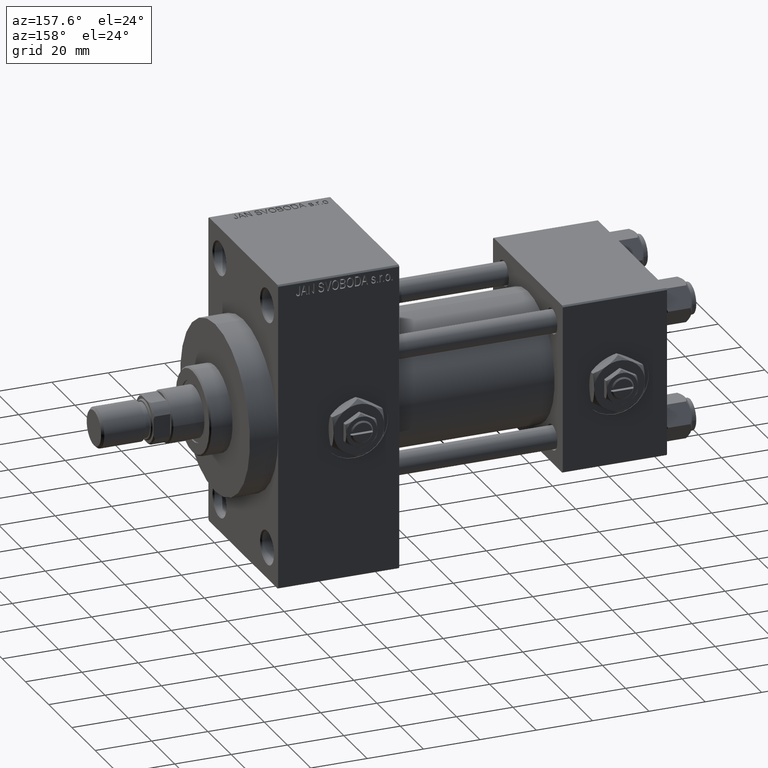
[diagram: clean part render]
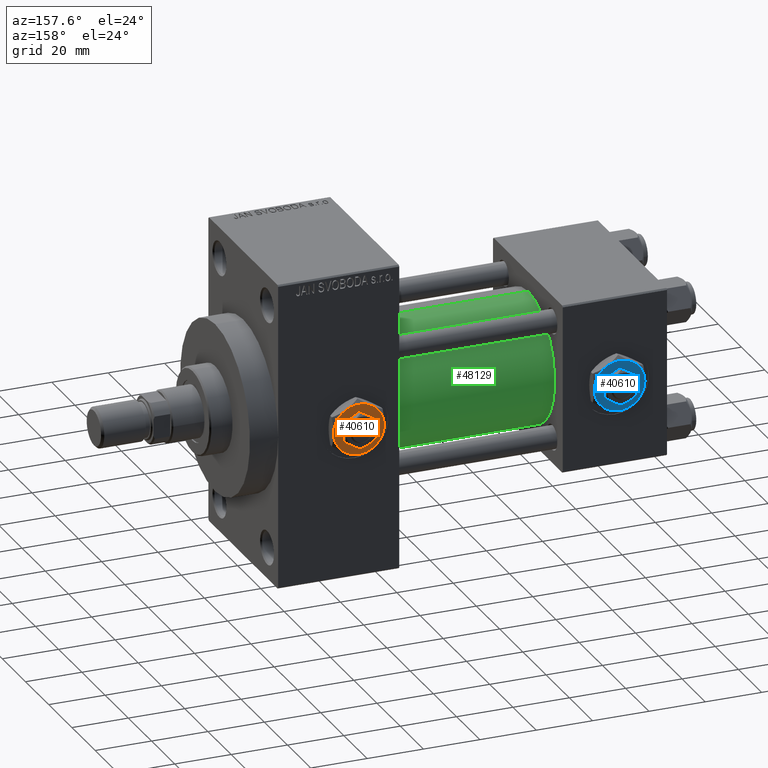
[diagram: same view with three faces highlighted in distinct colors, each labeled with its STEP entity id]
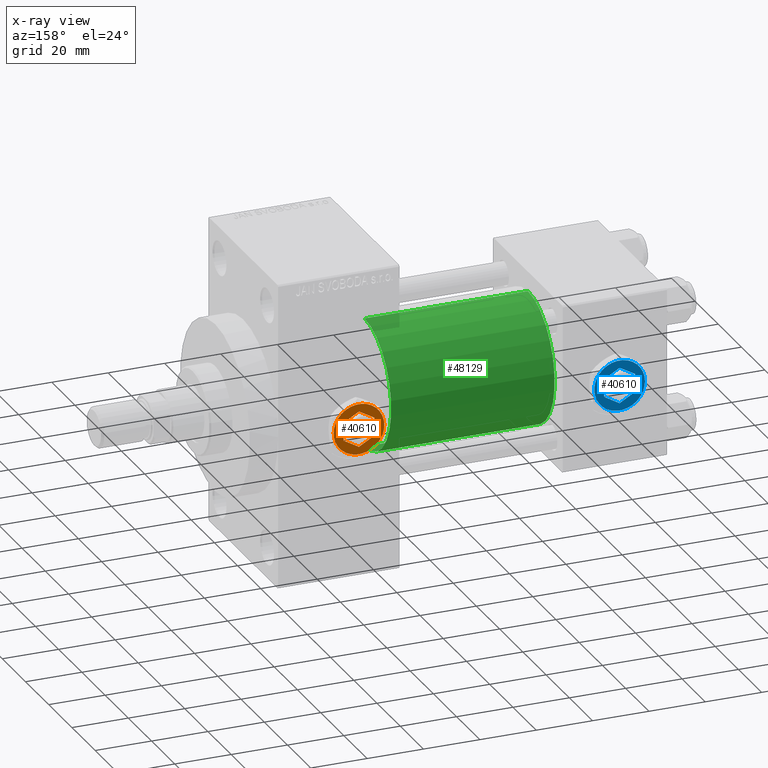
[diagram: x-ray of the same camera — body ghosted, the three highlighted faces saturated]
A machine part, auxiliary view with three faces highlighted in distinct colors.
The next image is the same camera in x-ray (body ghosted, the three faces saturated) — at least one of them is partly hidden behind the body in this view.
Their STEP definitions:

[orange] entity #40610 — the highlighted planar face has unit normal (0, 1, 0).
#30 = EDGE_CURVE ( 'NONE', #42749, #38718, #43653, .T. ) ;
#1771 = VECTOR ( 'NONE', #8315, 1000.000000000000000 ) ;
#2090 = CARTESIAN_POINT ( 'NONE',  ( 0.000000000000000000, 0.000000000000000000, 4.299999999999999822 ) ) ;
#2254 = ORIENTED_EDGE ( 'NONE', *, *, #5865, .T. ) ;
#2389 = AXIS2_PLACEMENT_3D ( 'NONE', #2090, #32541, #9897 ) ;
#2541 = DIRECTION ( 'NONE',  ( 0.000000000000000000, 0.000000000000000000, 1.000000000000000000 ) ) ;
#2704 = CARTESIAN_POINT ( 'NONE',  ( 0.000000000000000000, 0.000000000000000000, 4.299999999999999822 ) ) ;
#2849 = DIRECTION ( 'NONE',  ( 0.8660254037844387076, -0.4999999999999998890, 0.000000000000000000 ) ) ;
#2862 = EDGE_CURVE ( 'NONE', #18109, #26643, #11541, .T. ) ;
#2950 = FACE_OUTER_BOUND ( 'NONE', #32257, .T. ) ;
#3564 = DIRECTION ( 'NONE',  ( 0.000000000000000000, 0.000000000000000000, 1.000000000000000000 ) ) ;
#4000 = CIRCLE ( 'NONE', #2389, 9.000000000000000000 ) ;
#4720 = ORIENTED_EDGE ( 'NONE', *, *, #32499, .T. ) ;
#5288 = ORIENTED_EDGE ( 'NONE', *, *, #48249, .F. ) ;
#5865 = EDGE_CURVE ( 'NONE', #9272, #24291, #27627, .T. ) ;
#5954 = DIRECTION ( 'NONE',  ( 1.000000000000000000, 0.000000000000000000, 0.000000000000000000 ) ) ;
#6896 = ORIENTED_EDGE ( 'NONE', *, *, #14980, .F. ) ;
#6975 = CARTESIAN_POINT ( 'NONE',  ( 4.499999999999997335, -7.794228634059948035, 4.299999999999999822 ) ) ;
#6991 = ORIENTED_EDGE ( 'NONE', *, *, #30, .T. ) ;
#8315 = DIRECTION ( 'NONE',  ( -2.731481088613017227E-16, 1.000000000000000000, 0.000000000000000000 ) ) ;
#8366 = EDGE_CURVE ( 'NONE', #33393, #41302, #15268, .T. ) ;
#9216 = ORIENTED_EDGE ( 'NONE', *, *, #16016, .F. ) ;
#9272 = VERTEX_POINT ( 'NONE', #25879 ) ;
#9516 = CARTESIAN_POINT ( 'NONE',  ( 4.500000000000000000, 7.794228634059947147, 4.299999999999999822 ) ) ;
#9851 = CARTESIAN_POINT ( 'NONE',  ( 0.000000000000000000, 0.000000000000000000, 4.299999999999999822 ) ) ;
#9853 = EDGE_CURVE ( 'NONE', #38718, #9272, #4000, .T. ) ;
#9897 = DIRECTION ( 'NONE',  ( 1.000000000000000000, 0.000000000000000000, 0.000000000000000000 ) ) ;
#10600 = AXIS2_PLACEMENT_3D ( 'NONE', #46679, #24278, #11960 ) ;
#10900 = CIRCLE ( 'NONE', #30189, 9.000000000000000000 ) ;
#11541 = LINE ( 'NONE', #34199, #20286 ) ;
#11960 = DIRECTION ( 'NONE',  ( 1.000000000000000000, 0.000000000000000000, 0.000000000000000000 ) ) ;
#12142 = ORIENTED_EDGE ( 'NONE', *, *, #2862, .F. ) ;
#14505 = DIRECTION ( 'NONE',  ( 1.000000000000000000, 0.000000000000000000, -0.000000000000000000 ) ) ;
#14980 = EDGE_CURVE ( 'NONE', #26643, #39457, #32192, .T. ) ;
#15117 = LINE ( 'NONE', #18898, #39501 ) ;
#15268 = LINE ( 'NONE', #22835, #32046 ) ;
#15842 = CARTESIAN_POINT ( 'NONE',  ( -5.500000000000000000, -3.175426480542942187, 4.299999999999999822 ) ) ;
#16016 = EDGE_CURVE ( 'NONE', #39025, #18109, #33536, .T. ) ;
#16591 = CARTESIAN_POINT ( 'NONE',  ( -1.343581385738006573E-15, -6.350852961085881709, 4.299999999999999822 ) ) ;
#17369 = CARTESIAN_POINT ( 'NONE',  ( 8.999999999999998224, 0.000000000000000000, 4.299999999999999822 ) ) ;
#17656 = ORIENTED_EDGE ( 'NONE', *, *, #8366, .F. ) ;
#18109 = VERTEX_POINT ( 'NONE', #16591 ) ;
#18898 = CARTESIAN_POINT ( 'NONE',  ( 5.499999999999999112, 3.175426480542943075, 4.299999999999999822 ) ) ;
#19095 = EDGE_CURVE ( 'NONE', #41302, #39025, #37733, .T. ) ;
#20286 = VECTOR ( 'NONE', #45275, 1000.000000000000000 ) ;
#20771 = AXIS2_PLACEMENT_3D ( 'NONE', #2704, #45716, #14505 ) ;
#20890 = CARTESIAN_POINT ( 'NONE',  ( 5.500000000000000888, -3.175426480542940855, 4.299999999999999822 ) ) ;
#21228 = AXIS2_PLACEMENT_3D ( 'NONE', #41415, #33854, #5954 ) ;
#21491 = AXIS2_PLACEMENT_3D ( 'NONE', #38044, #3564, #27937 ) ;
#21871 = VECTOR ( 'NONE', #2849, 1000.000000000000000 ) ;
#22815 = PLANE ( 'NONE',  #20771 ) ;
#22835 = CARTESIAN_POINT ( 'NONE',  ( 0.000000000000000000, 6.350852961085883486, 4.299999999999999822 ) ) ;
#24278 = DIRECTION ( 'NONE',  ( 0.000000000000000000, 0.000000000000000000, 1.000000000000000000 ) ) ;
#24291 = VERTEX_POINT ( 'NONE', #47464 ) ;
#24690 = DIRECTION ( 'NONE',  ( 1.000000000000000000, 0.000000000000000000, 0.000000000000000000 ) ) ;
#25879 = CARTESIAN_POINT ( 'NONE',  ( -9.000000000000000000, 0.000000000000000000, 4.299999999999999822 ) ) ;
#26618 = EDGE_CURVE ( 'NONE', #41616, #37232, #10900, .T. ) ;
#26643 = VERTEX_POINT ( 'NONE', #20890 ) ;
#27045 = CIRCLE ( 'NONE', #45512, 9.000000000000000000 ) ;
#27437 = CARTESIAN_POINT ( 'NONE',  ( 5.500000000000000888, -3.175426480542940855, 4.299999999999999822 ) ) ;
#27627 = CIRCLE ( 'NONE', #21228, 9.000000000000000000 ) ;
#27937 = DIRECTION ( 'NONE',  ( 1.000000000000000000, 0.000000000000000000, 0.000000000000000000 ) ) ;
#28229 = CARTESIAN_POINT ( 'NONE',  ( 0.000000000000000000, 6.350852961085883486, 4.299999999999999822 ) ) ;
#28715 = DIRECTION ( 'NONE',  ( 1.000000000000000000, 0.000000000000000000, 0.000000000000000000 ) ) ;
#29016 = EDGE_LOOP ( 'NONE', ( #17656, #5288, #6896, #12142, #9216, #36911 ) ) ;
#30189 = AXIS2_PLACEMENT_3D ( 'NONE', #43550, #32729, #28715 ) ;
#30239 = DIRECTION ( 'NONE',  ( -0.8660254037844387076, 0.4999999999999999445, 0.000000000000000000 ) ) ;
#30523 = CARTESIAN_POINT ( 'NONE',  ( -5.500000000000000000, -3.175426480542942187, 4.299999999999999822 ) ) ;
#30660 = ORIENTED_EDGE ( 'NONE', *, *, #38928, .T. ) ;
#31509 = VECTOR ( 'NONE', #42017, 1000.000000000000000 ) ;
#31907 = ORIENTED_EDGE ( 'NONE', *, *, #26618, .T. ) ;
#32046 = VECTOR ( 'NONE', #38678, 1000.000000000000114 ) ;
#32192 = LINE ( 'NONE', #27437, #1771 ) ;
#32257 = EDGE_LOOP ( 'NONE', ( #31907, #4720, #6991, #39328, #2254, #30660 ) ) ;
#32499 = EDGE_CURVE ( 'NONE', #37232, #42749, #27045, .T. ) ;
#32541 = DIRECTION ( 'NONE',  ( 0.000000000000000000, 0.000000000000000000, 1.000000000000000000 ) ) ;
#32729 = DIRECTION ( 'NONE',  ( 0.000000000000000000, 0.000000000000000000, 1.000000000000000000 ) ) ;
#33393 = VERTEX_POINT ( 'NONE', #28229 ) ;
#33536 = LINE ( 'NONE', #30523, #21871 ) ;
#33854 = DIRECTION ( 'NONE',  ( 0.000000000000000000, 0.000000000000000000, 1.000000000000000000 ) ) ;
#34199 = CARTESIAN_POINT ( 'NONE',  ( -1.343581385738006573E-15, -6.350852961085881709, 4.299999999999999822 ) ) ;
#36911 = ORIENTED_EDGE ( 'NONE', *, *, #19095, .F. ) ;
#37053 = CARTESIAN_POINT ( 'NONE',  ( -5.500000000000000000, 3.175426480542941743, 4.299999999999999822 ) ) ;
#37232 = VERTEX_POINT ( 'NONE', #17369 ) ;
#37733 = LINE ( 'NONE', #41768, #31509 ) ;
#38044 = CARTESIAN_POINT ( 'NONE',  ( 0.000000000000000000, 0.000000000000000000, 4.299999999999999822 ) ) ;
#38678 = DIRECTION ( 'NONE',  ( -0.8660254037844385966, -0.4999999999999999445, 0.000000000000000000 ) ) ;
#38718 = VERTEX_POINT ( 'NONE', #42606 ) ;
#38928 = EDGE_CURVE ( 'NONE', #24291, #41616, #39971, .T. ) ;
#39025 = VERTEX_POINT ( 'NONE', #15842 ) ;
#39328 = ORIENTED_EDGE ( 'NONE', *, *, #9853, .T. ) ;
#39457 = VERTEX_POINT ( 'NONE', #46877 ) ;
#39501 = VECTOR ( 'NONE', #30239, 1000.000000000000000 ) ;
#39971 = CIRCLE ( 'NONE', #21491, 9.000000000000000000 ) ;
#40610 = ADVANCED_FACE ( 'NONE', ( #2950, #49242 ), #22815, .T. ) ;
#41302 = VERTEX_POINT ( 'NONE', #37053 ) ;
#41415 = CARTESIAN_POINT ( 'NONE',  ( 0.000000000000000000, 0.000000000000000000, 4.299999999999999822 ) ) ;
#41616 = VERTEX_POINT ( 'NONE', #6975 ) ;
#41768 = CARTESIAN_POINT ( 'NONE',  ( -5.500000000000000000, 3.175426480542941743, 4.299999999999999822 ) ) ;
#42017 = DIRECTION ( 'NONE',  ( 0.000000000000000000, -1.000000000000000000, 0.000000000000000000 ) ) ;
#42606 = CARTESIAN_POINT ( 'NONE',  ( -4.500000000000000000, 7.794228634059947147, 4.299999999999999822 ) ) ;
#42749 = VERTEX_POINT ( 'NONE', #9516 ) ;
#43550 = CARTESIAN_POINT ( 'NONE',  ( 0.000000000000000000, 0.000000000000000000, 4.299999999999999822 ) ) ;
#43653 = CIRCLE ( 'NONE', #10600, 9.000000000000000000 ) ;
#45275 = DIRECTION ( 'NONE',  ( 0.8660254037844388186, 0.4999999999999997224, 0.000000000000000000 ) ) ;
#45512 = AXIS2_PLACEMENT_3D ( 'NONE', #9851, #2541, #24690 ) ;
#45716 = DIRECTION ( 'NONE',  ( 0.000000000000000000, 0.000000000000000000, 1.000000000000000000 ) ) ;
#46679 = CARTESIAN_POINT ( 'NONE',  ( 0.000000000000000000, 0.000000000000000000, 4.299999999999999822 ) ) ;
#46877 = CARTESIAN_POINT ( 'NONE',  ( 5.499999999999999112, 3.175426480542943075, 4.299999999999999822 ) ) ;
#47464 = CARTESIAN_POINT ( 'NONE',  ( -4.499999999999998224, -7.794228634059947147, 4.299999999999999822 ) ) ;
#48249 = EDGE_CURVE ( 'NONE', #39457, #33393, #15117, .T. ) ;
#49242 = FACE_BOUND ( 'NONE', #29016, .T. ) ;

[blue] entity #40610 — the highlighted planar face has unit normal (0, 1, 0).
#30 = EDGE_CURVE ( 'NONE', #42749, #38718, #43653, .T. ) ;
#1771 = VECTOR ( 'NONE', #8315, 1000.000000000000000 ) ;
#2090 = CARTESIAN_POINT ( 'NONE',  ( 0.000000000000000000, 0.000000000000000000, 4.299999999999999822 ) ) ;
#2254 = ORIENTED_EDGE ( 'NONE', *, *, #5865, .T. ) ;
#2389 = AXIS2_PLACEMENT_3D ( 'NONE', #2090, #32541, #9897 ) ;
#2541 = DIRECTION ( 'NONE',  ( 0.000000000000000000, 0.000000000000000000, 1.000000000000000000 ) ) ;
#2704 = CARTESIAN_POINT ( 'NONE',  ( 0.000000000000000000, 0.000000000000000000, 4.299999999999999822 ) ) ;
#2849 = DIRECTION ( 'NONE',  ( 0.8660254037844387076, -0.4999999999999998890, 0.000000000000000000 ) ) ;
#2862 = EDGE_CURVE ( 'NONE', #18109, #26643, #11541, .T. ) ;
#2950 = FACE_OUTER_BOUND ( 'NONE', #32257, .T. ) ;
#3564 = DIRECTION ( 'NONE',  ( 0.000000000000000000, 0.000000000000000000, 1.000000000000000000 ) ) ;
#4000 = CIRCLE ( 'NONE', #2389, 9.000000000000000000 ) ;
#4720 = ORIENTED_EDGE ( 'NONE', *, *, #32499, .T. ) ;
#5288 = ORIENTED_EDGE ( 'NONE', *, *, #48249, .F. ) ;
#5865 = EDGE_CURVE ( 'NONE', #9272, #24291, #27627, .T. ) ;
#5954 = DIRECTION ( 'NONE',  ( 1.000000000000000000, 0.000000000000000000, 0.000000000000000000 ) ) ;
#6896 = ORIENTED_EDGE ( 'NONE', *, *, #14980, .F. ) ;
#6975 = CARTESIAN_POINT ( 'NONE',  ( 4.499999999999997335, -7.794228634059948035, 4.299999999999999822 ) ) ;
#6991 = ORIENTED_EDGE ( 'NONE', *, *, #30, .T. ) ;
#8315 = DIRECTION ( 'NONE',  ( -2.731481088613017227E-16, 1.000000000000000000, 0.000000000000000000 ) ) ;
#8366 = EDGE_CURVE ( 'NONE', #33393, #41302, #15268, .T. ) ;
#9216 = ORIENTED_EDGE ( 'NONE', *, *, #16016, .F. ) ;
#9272 = VERTEX_POINT ( 'NONE', #25879 ) ;
#9516 = CARTESIAN_POINT ( 'NONE',  ( 4.500000000000000000, 7.794228634059947147, 4.299999999999999822 ) ) ;
#9851 = CARTESIAN_POINT ( 'NONE',  ( 0.000000000000000000, 0.000000000000000000, 4.299999999999999822 ) ) ;
#9853 = EDGE_CURVE ( 'NONE', #38718, #9272, #4000, .T. ) ;
#9897 = DIRECTION ( 'NONE',  ( 1.000000000000000000, 0.000000000000000000, 0.000000000000000000 ) ) ;
#10600 = AXIS2_PLACEMENT_3D ( 'NONE', #46679, #24278, #11960 ) ;
#10900 = CIRCLE ( 'NONE', #30189, 9.000000000000000000 ) ;
#11541 = LINE ( 'NONE', #34199, #20286 ) ;
#11960 = DIRECTION ( 'NONE',  ( 1.000000000000000000, 0.000000000000000000, 0.000000000000000000 ) ) ;
#12142 = ORIENTED_EDGE ( 'NONE', *, *, #2862, .F. ) ;
#14505 = DIRECTION ( 'NONE',  ( 1.000000000000000000, 0.000000000000000000, -0.000000000000000000 ) ) ;
#14980 = EDGE_CURVE ( 'NONE', #26643, #39457, #32192, .T. ) ;
#15117 = LINE ( 'NONE', #18898, #39501 ) ;
#15268 = LINE ( 'NONE', #22835, #32046 ) ;
#15842 = CARTESIAN_POINT ( 'NONE',  ( -5.500000000000000000, -3.175426480542942187, 4.299999999999999822 ) ) ;
#16016 = EDGE_CURVE ( 'NONE', #39025, #18109, #33536, .T. ) ;
#16591 = CARTESIAN_POINT ( 'NONE',  ( -1.343581385738006573E-15, -6.350852961085881709, 4.299999999999999822 ) ) ;
#17369 = CARTESIAN_POINT ( 'NONE',  ( 8.999999999999998224, 0.000000000000000000, 4.299999999999999822 ) ) ;
#17656 = ORIENTED_EDGE ( 'NONE', *, *, #8366, .F. ) ;
#18109 = VERTEX_POINT ( 'NONE', #16591 ) ;
#18898 = CARTESIAN_POINT ( 'NONE',  ( 5.499999999999999112, 3.175426480542943075, 4.299999999999999822 ) ) ;
#19095 = EDGE_CURVE ( 'NONE', #41302, #39025, #37733, .T. ) ;
#20286 = VECTOR ( 'NONE', #45275, 1000.000000000000000 ) ;
#20771 = AXIS2_PLACEMENT_3D ( 'NONE', #2704, #45716, #14505 ) ;
#20890 = CARTESIAN_POINT ( 'NONE',  ( 5.500000000000000888, -3.175426480542940855, 4.299999999999999822 ) ) ;
#21228 = AXIS2_PLACEMENT_3D ( 'NONE', #41415, #33854, #5954 ) ;
#21491 = AXIS2_PLACEMENT_3D ( 'NONE', #38044, #3564, #27937 ) ;
#21871 = VECTOR ( 'NONE', #2849, 1000.000000000000000 ) ;
#22815 = PLANE ( 'NONE',  #20771 ) ;
#22835 = CARTESIAN_POINT ( 'NONE',  ( 0.000000000000000000, 6.350852961085883486, 4.299999999999999822 ) ) ;
#24278 = DIRECTION ( 'NONE',  ( 0.000000000000000000, 0.000000000000000000, 1.000000000000000000 ) ) ;
#24291 = VERTEX_POINT ( 'NONE', #47464 ) ;
#24690 = DIRECTION ( 'NONE',  ( 1.000000000000000000, 0.000000000000000000, 0.000000000000000000 ) ) ;
#25879 = CARTESIAN_POINT ( 'NONE',  ( -9.000000000000000000, 0.000000000000000000, 4.299999999999999822 ) ) ;
#26618 = EDGE_CURVE ( 'NONE', #41616, #37232, #10900, .T. ) ;
#26643 = VERTEX_POINT ( 'NONE', #20890 ) ;
#27045 = CIRCLE ( 'NONE', #45512, 9.000000000000000000 ) ;
#27437 = CARTESIAN_POINT ( 'NONE',  ( 5.500000000000000888, -3.175426480542940855, 4.299999999999999822 ) ) ;
#27627 = CIRCLE ( 'NONE', #21228, 9.000000000000000000 ) ;
#27937 = DIRECTION ( 'NONE',  ( 1.000000000000000000, 0.000000000000000000, 0.000000000000000000 ) ) ;
#28229 = CARTESIAN_POINT ( 'NONE',  ( 0.000000000000000000, 6.350852961085883486, 4.299999999999999822 ) ) ;
#28715 = DIRECTION ( 'NONE',  ( 1.000000000000000000, 0.000000000000000000, 0.000000000000000000 ) ) ;
#29016 = EDGE_LOOP ( 'NONE', ( #17656, #5288, #6896, #12142, #9216, #36911 ) ) ;
#30189 = AXIS2_PLACEMENT_3D ( 'NONE', #43550, #32729, #28715 ) ;
#30239 = DIRECTION ( 'NONE',  ( -0.8660254037844387076, 0.4999999999999999445, 0.000000000000000000 ) ) ;
#30523 = CARTESIAN_POINT ( 'NONE',  ( -5.500000000000000000, -3.175426480542942187, 4.299999999999999822 ) ) ;
#30660 = ORIENTED_EDGE ( 'NONE', *, *, #38928, .T. ) ;
#31509 = VECTOR ( 'NONE', #42017, 1000.000000000000000 ) ;
#31907 = ORIENTED_EDGE ( 'NONE', *, *, #26618, .T. ) ;
#32046 = VECTOR ( 'NONE', #38678, 1000.000000000000114 ) ;
#32192 = LINE ( 'NONE', #27437, #1771 ) ;
#32257 = EDGE_LOOP ( 'NONE', ( #31907, #4720, #6991, #39328, #2254, #30660 ) ) ;
#32499 = EDGE_CURVE ( 'NONE', #37232, #42749, #27045, .T. ) ;
#32541 = DIRECTION ( 'NONE',  ( 0.000000000000000000, 0.000000000000000000, 1.000000000000000000 ) ) ;
#32729 = DIRECTION ( 'NONE',  ( 0.000000000000000000, 0.000000000000000000, 1.000000000000000000 ) ) ;
#33393 = VERTEX_POINT ( 'NONE', #28229 ) ;
#33536 = LINE ( 'NONE', #30523, #21871 ) ;
#33854 = DIRECTION ( 'NONE',  ( 0.000000000000000000, 0.000000000000000000, 1.000000000000000000 ) ) ;
#34199 = CARTESIAN_POINT ( 'NONE',  ( -1.343581385738006573E-15, -6.350852961085881709, 4.299999999999999822 ) ) ;
#36911 = ORIENTED_EDGE ( 'NONE', *, *, #19095, .F. ) ;
#37053 = CARTESIAN_POINT ( 'NONE',  ( -5.500000000000000000, 3.175426480542941743, 4.299999999999999822 ) ) ;
#37232 = VERTEX_POINT ( 'NONE', #17369 ) ;
#37733 = LINE ( 'NONE', #41768, #31509 ) ;
#38044 = CARTESIAN_POINT ( 'NONE',  ( 0.000000000000000000, 0.000000000000000000, 4.299999999999999822 ) ) ;
#38678 = DIRECTION ( 'NONE',  ( -0.8660254037844385966, -0.4999999999999999445, 0.000000000000000000 ) ) ;
#38718 = VERTEX_POINT ( 'NONE', #42606 ) ;
#38928 = EDGE_CURVE ( 'NONE', #24291, #41616, #39971, .T. ) ;
#39025 = VERTEX_POINT ( 'NONE', #15842 ) ;
#39328 = ORIENTED_EDGE ( 'NONE', *, *, #9853, .T. ) ;
#39457 = VERTEX_POINT ( 'NONE', #46877 ) ;
#39501 = VECTOR ( 'NONE', #30239, 1000.000000000000000 ) ;
#39971 = CIRCLE ( 'NONE', #21491, 9.000000000000000000 ) ;
#40610 = ADVANCED_FACE ( 'NONE', ( #2950, #49242 ), #22815, .T. ) ;
#41302 = VERTEX_POINT ( 'NONE', #37053 ) ;
#41415 = CARTESIAN_POINT ( 'NONE',  ( 0.000000000000000000, 0.000000000000000000, 4.299999999999999822 ) ) ;
#41616 = VERTEX_POINT ( 'NONE', #6975 ) ;
#41768 = CARTESIAN_POINT ( 'NONE',  ( -5.500000000000000000, 3.175426480542941743, 4.299999999999999822 ) ) ;
#42017 = DIRECTION ( 'NONE',  ( 0.000000000000000000, -1.000000000000000000, 0.000000000000000000 ) ) ;
#42606 = CARTESIAN_POINT ( 'NONE',  ( -4.500000000000000000, 7.794228634059947147, 4.299999999999999822 ) ) ;
#42749 = VERTEX_POINT ( 'NONE', #9516 ) ;
#43550 = CARTESIAN_POINT ( 'NONE',  ( 0.000000000000000000, 0.000000000000000000, 4.299999999999999822 ) ) ;
#43653 = CIRCLE ( 'NONE', #10600, 9.000000000000000000 ) ;
#45275 = DIRECTION ( 'NONE',  ( 0.8660254037844388186, 0.4999999999999997224, 0.000000000000000000 ) ) ;
#45512 = AXIS2_PLACEMENT_3D ( 'NONE', #9851, #2541, #24690 ) ;
#45716 = DIRECTION ( 'NONE',  ( 0.000000000000000000, 0.000000000000000000, 1.000000000000000000 ) ) ;
#46679 = CARTESIAN_POINT ( 'NONE',  ( 0.000000000000000000, 0.000000000000000000, 4.299999999999999822 ) ) ;
#46877 = CARTESIAN_POINT ( 'NONE',  ( 5.499999999999999112, 3.175426480542943075, 4.299999999999999822 ) ) ;
#47464 = CARTESIAN_POINT ( 'NONE',  ( -4.499999999999998224, -7.794228634059947147, 4.299999999999999822 ) ) ;
#48249 = EDGE_CURVE ( 'NONE', #39457, #33393, #15117, .T. ) ;
#49242 = FACE_BOUND ( 'NONE', #29016, .T. ) ;

[green] entity #48129 — the highlighted cylindrical surface (partial cylindrical patch) has radius 23 mm, axis along (-1, -0, -0).
#857 = EDGE_CURVE ( 'NONE', #35603, #48558, #15432, .T. ) ;
#1897 = ORIENTED_EDGE ( 'NONE', *, *, #44496, .T. ) ;
#2431 = FACE_OUTER_BOUND ( 'NONE', #23804, .T. ) ;
#2681 = CARTESIAN_POINT ( 'NONE',  ( 95.00000000000000000, -2.602085213965210642E-15, 0.000000000000000000 ) ) ;
#3264 = VECTOR ( 'NONE', #37036, 1000.000000000000000 ) ;
#3375 = AXIS2_PLACEMENT_3D ( 'NONE', #2681, #37398, #45197 ) ;
#8018 = DIRECTION ( 'NONE',  ( 0.000000000000000000, 0.000000000000000000, 1.000000000000000000 ) ) ;
#8318 = EDGE_CURVE ( 'NONE', #31309, #30733, #25625, .T. ) ;
#10590 = CARTESIAN_POINT ( 'NONE',  ( 95.00000000000000000, -2.602085213965210642E-15, 23.00000000000000000 ) ) ;
#15305 = DIRECTION ( 'NONE',  ( 1.000000000000000000, -0.000000000000000000, 0.000000000000000000 ) ) ;
#15432 = CIRCLE ( 'NONE', #32331, 23.00000000000000000 ) ;
#16021 = ORIENTED_EDGE ( 'NONE', *, *, #857, .T. ) ;
#18261 = CYLINDRICAL_SURFACE ( 'NONE', #3375, 23.00000000000000000 ) ;
#21024 = CARTESIAN_POINT ( 'NONE',  ( 95.00000000000000000, 2.146024240737012665E-16, -23.00000000000000000 ) ) ;
#23804 = EDGE_LOOP ( 'NONE', ( #38515, #1897, #16021, #37565 ) ) ;
#25625 = CIRCLE ( 'NONE', #33670, 23.00000000000000000 ) ;
#26696 = DIRECTION ( 'NONE',  ( -1.000000000000000000, -0.000000000000000000, -0.000000000000000000 ) ) ;
#26872 = CARTESIAN_POINT ( 'NONE',  ( 95.00000000000000000, -2.602085213965210642E-15, 0.000000000000000000 ) ) ;
#30733 = VERTEX_POINT ( 'NONE', #39796 ) ;
#31309 = VERTEX_POINT ( 'NONE', #21024 ) ;
#31649 = CARTESIAN_POINT ( 'NONE',  ( 37.00000000000000000, 2.146024240737012665E-16, -23.00000000000000000 ) ) ;
#32331 = AXIS2_PLACEMENT_3D ( 'NONE', #49776, #15305, #8018 ) ;
#32517 = CARTESIAN_POINT ( 'NONE',  ( 95.00000000000000000, 2.146024240737012665E-16, -23.00000000000000000 ) ) ;
#33670 = AXIS2_PLACEMENT_3D ( 'NONE', #26872, #35150, #42696 ) ;
#35150 = DIRECTION ( 'NONE',  ( 1.000000000000000000, 0.000000000000000000, 0.000000000000000000 ) ) ;
#35603 = VERTEX_POINT ( 'NONE', #31649 ) ;
#35974 = CARTESIAN_POINT ( 'NONE',  ( 37.00000000000000000, -2.602085213965210642E-15, 23.00000000000000000 ) ) ;
#37036 = DIRECTION ( 'NONE',  ( -1.000000000000000000, -0.000000000000000000, -0.000000000000000000 ) ) ;
#37398 = DIRECTION ( 'NONE',  ( -1.000000000000000000, -0.000000000000000000, -0.000000000000000000 ) ) ;
#37565 = ORIENTED_EDGE ( 'NONE', *, *, #46927, .F. ) ;
#38515 = ORIENTED_EDGE ( 'NONE', *, *, #8318, .F. ) ;
#39796 = CARTESIAN_POINT ( 'NONE',  ( 95.00000000000000000, -2.602085213965210642E-15, 23.00000000000000000 ) ) ;
#40304 = VECTOR ( 'NONE', #26696, 1000.000000000000000 ) ;
#40810 = LINE ( 'NONE', #32517, #3264 ) ;
#42696 = DIRECTION ( 'NONE',  ( 0.000000000000000000, 0.000000000000000000, -1.000000000000000000 ) ) ;
#44496 = EDGE_CURVE ( 'NONE', #31309, #35603, #40810, .T. ) ;
#45061 = LINE ( 'NONE', #10590, #40304 ) ;
#45197 = DIRECTION ( 'NONE',  ( 0.000000000000000000, 0.000000000000000000, 1.000000000000000000 ) ) ;
#46927 = EDGE_CURVE ( 'NONE', #30733, #48558, #45061, .T. ) ;
#48129 = ADVANCED_FACE ( 'NONE', ( #2431 ), #18261, .T. ) ;
#48558 = VERTEX_POINT ( 'NONE', #35974 ) ;
#49776 = CARTESIAN_POINT ( 'NONE',  ( 37.00000000000000000, -2.602085213965210642E-15, 0.000000000000000000 ) ) ;